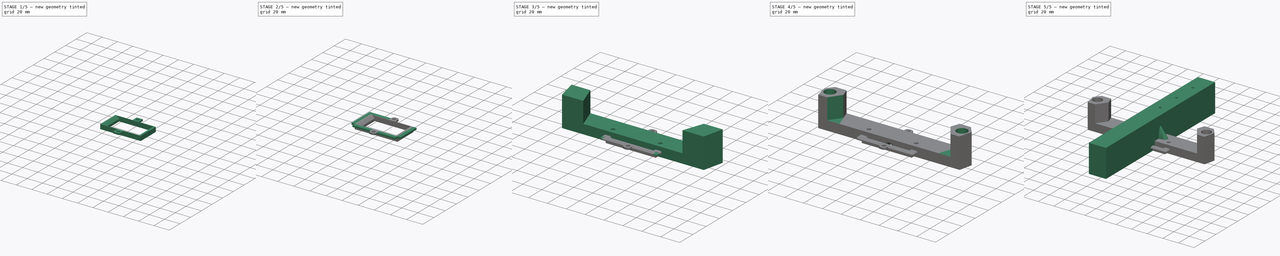
[diagram: build sequence overview — one tinted view per stage of 5, left to right]
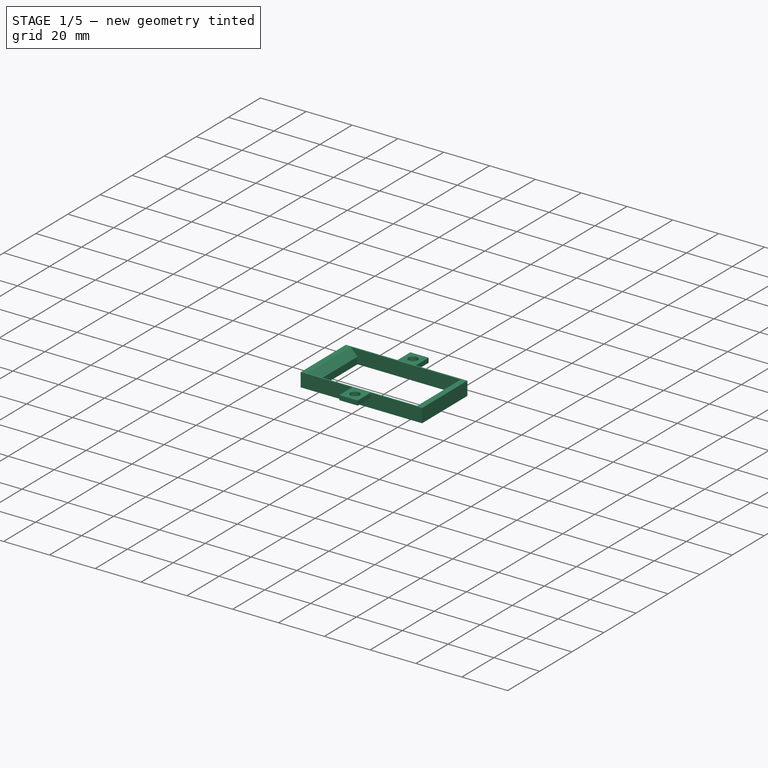
[diagram: stage 1 of 5 — iso view after this stage's code; geometry added in this stage tinted green]
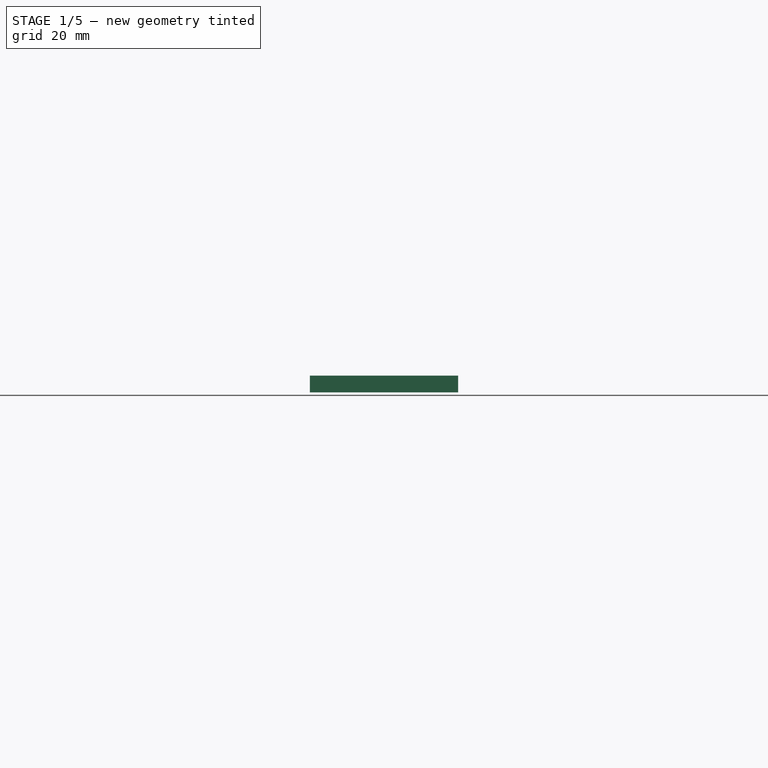
[diagram: stage 1 of 5 — front view after this stage's code; geometry added in this stage tinted green]
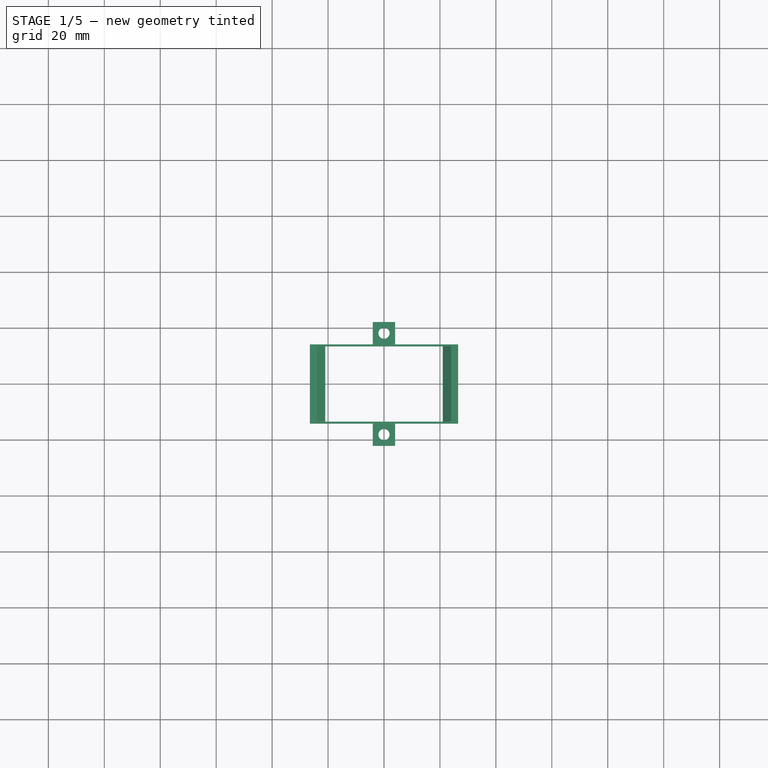
[diagram: stage 1 of 5 — top view after this stage's code; geometry added in this stage tinted green]
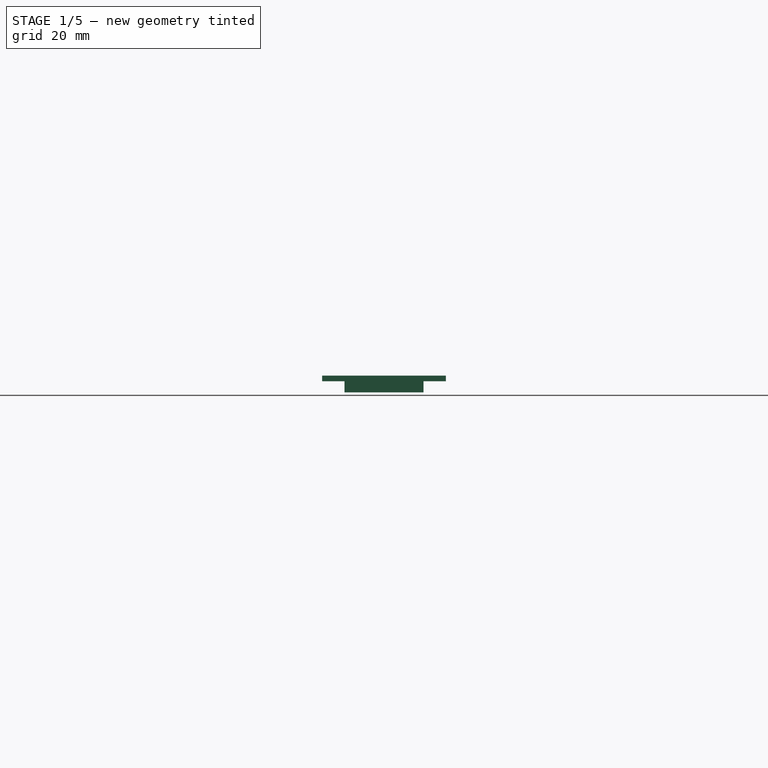
[diagram: stage 1 of 5 — right view after this stage's code; geometry added in this stage tinted green]
FCSTD DOCUMENT  (FreeCAD 0.21R33668 +1 (Git))
Label: bed_mount+rwg112holder
License: All rights reserved
LicenseURL: https://en.wikipedia.org/wiki/All_rights_reserved
objects: Sketcher::SketchObject×18, PartDesign::Pad×18, PartDesign::Pocket×11, PartDesign::Body×5, PartDesign::Chamfer×5, PartDesign::Fillet×3, PartDesign::AdditiveLoft×1, App::MeasureDistance×1
note: 99 computed .brp shape members not serialized (recipe doc carries the construction recipe); baked Part::Feature solids carry a one-line shape summary decoded from their .brp

FEATURE [PartDesign::Body] Body003
  Group = -> [Sketch009,Pad002,Sketch010,Pad003,Pocket005,Pocket006,Sketch011,Pocket007,Fillet,Sketch012,Pocket008,Chamfer,Chamfer001]
  Origin = -> Origin003
  Tip = -> Chamfer001
FEATURE [Sketcher::SketchObject] Sketch013
  FullyConstrained = true
  MapMode = 5
  Support = -> [XY_Plane004]
  sketch-geometry (4):
    g0: LineSegment StartX=-26.5 StartY=14.125 StartZ=0 EndX=26.5 EndY=14.125 EndZ=0
    g1: LineSegment StartX=26.5 StartY=14.125 StartZ=0 EndX=26.5 EndY=-14.125 EndZ=0
    g2: LineSegment StartX=26.5 StartY=-14.125 StartZ=0 EndX=-26.5 EndY=-14.125 EndZ=0
    g3: LineSegment StartX=-26.5 StartY=-14.125 StartZ=0 EndX=-26.5 EndY=14.125 EndZ=0
  constraints (11):
    c: Coincident(g0,g1)
    c: Coincident(g1,g2)
    c: Coincident(g2,g3)
    c: Coincident(g3,g0)
    c: Horizontal(g0)
    c: Horizontal(g2)
    c: Vertical(g1)
    c: Vertical(g3)
    c: DistanceY(g1,g1) = 28.25
    c: DistanceX(g0,g0) = 53
    c: Symmetric(g2,g0,g-1)
FEATURE [PartDesign::Pad] Pad004
  Direction = (0,0,1)
  Length = 4
  Length2 = 10
  Profile = -> Sketch013
  ReferenceAxis = -> Sketch013 [N_Axis]
  Type = 0
FEATURE [PartDesign::Pad] Pad005
  BaseFeature = -> Pad004
  Direction = (0,0,1)
  Length = 2
  Length2 = 10
  Profile = -> Pad004 [Face6]
  Type = 0
FEATURE [Sketcher::SketchObject] Sketch014
  ExternalGeometry = -> [Pad005]
  FullyConstrained = true
  MapMode = 5
  Placement = pos=(0,-14.125,0) rot=(1,0,0;1.5708rad)
  Support = -> [Pad005]
  sketch-geometry (4):
    g0: LineSegment StartX=-4 StartY=6 StartZ=0 EndX=4 EndY=6 EndZ=0
    g1: LineSegment StartX=4 StartY=6 StartZ=0 EndX=4 EndY=4 EndZ=0
    g2: LineSegment StartX=4 StartY=4 StartZ=0 EndX=-4 EndY=4 EndZ=0
    g3: LineSegment StartX=-4 StartY=4 StartZ=0 EndX=-4 EndY=6 EndZ=0
  constraints (12):
    c: Coincident(g0,g1)
    c: Coincident(g1,g2)
    c: Coincident(g2,g3)
    c: Coincident(g3,g0)
    c: Horizontal(g0)
    c: Horizontal(g2)
    c: Vertical(g1)
    c: Vertical(g3)
    c: PointOnObject(g0,g-3)
    c: PointOnObject(g1,g-4)
    c: DistanceX(g0,g0) = 8
    c: DistanceX(g-1,g1) = 4
FEATURE [PartDesign::Pad] Pad006
  BaseFeature = -> Pad005
  Direction = (0,-1,2e-16)
  Length = 8
  Length2 = 10
  Profile = -> Sketch014
  ReferenceAxis = -> Sketch014 [N_Axis]
  Type = 0
FEATURE [Sketcher::SketchObject] Sketch015
  ExternalGeometry = -> [Pad006]
  FullyConstrained = true
  MapMode = 5
  Placement = pos=(0,14.125,0) rot=(0,0.707107,0.707107;3.14159rad)
  Support = -> [Pad006]
  sketch-geometry (4):
    g0: LineSegment StartX=-4 StartY=6 StartZ=0 EndX=4 EndY=6 EndZ=0
    g1: LineSegment StartX=4 StartY=6 StartZ=0 EndX=4 EndY=4 EndZ=0
    g2: LineSegment StartX=4 StartY=4 StartZ=0 EndX=-4 EndY=4 EndZ=0
    g3: LineSegment StartX=-4 StartY=4 StartZ=0 EndX=-4 EndY=6 EndZ=0
  constraints (12):
    c: Coincident(g0,g1)
    c: Coincident(g1,g2)
    c: Coincident(g2,g3)
    c: Coincident(g3,g0)
    c: Horizontal(g0)
    c: Horizontal(g2)
    c: Vertical(g1)
    c: Vertical(g3)
    c: PointOnObject(g0,g-4)
    c: PointOnObject(g1,g-3)
    c: DistanceX(g0,g0) = 8
    c: DistanceX(g-1,g1) = 4
FEATURE [PartDesign::Pad] Pad007
  BaseFeature = -> Pad006
  Direction = (0,1,-2e-16)
  Length = 8
  Length2 = 10
  Profile = -> Sketch015
  ReferenceAxis = -> Sketch015 [N_Axis]
  Type = 0
FEATURE [Sketcher::SketchObject] Sketch016
  ExternalGeometry = -> [Pad007]
  FullyConstrained = true
  MapMode = 5
  Placement = pos=(0,1.3e-15,6) rot=(0,0,1;0rad)
  Support = -> [Pad007]
  sketch-geometry (2):
    g0: Circle CenterX=0 CenterY=18.125 CenterZ=0 NormalX=0 NormalY=0 NormalZ=1 AngleXU=0 Radius=2
    g1: Circle CenterX=0 CenterY=-18.125 CenterZ=0 NormalX=0 NormalY=0 NormalZ=1 AngleXU=0 Radius=2
  constraints (6):
    c: PointOnObject(g0,g-2)
    c: PointOnObject(g1,g-2)
    c: Diameter(g1) = 4
    c: Diameter(g0) = 4
    c: DistanceY(g-6,g1) = 4
    c: DistanceY(g-5,g0) = 4
FEATURE [PartDesign::Pocket] Pocket009
  BaseFeature = -> Pad007
  Direction = (0,-2e-16,-1)
  Length = 5
  Length2 = 5
  Profile = -> Sketch016
  ReferenceAxis = -> Sketch016 [N_Axis]
  Type = 1
FEATURE [Sketcher::SketchObject] Sketch017
  FullyConstrained = true
  MapMode = 5
  Placement = pos=(0,0,0) rot=(1,0,0;3.14159rad)
  Support = -> [Pocket009]
  sketch-geometry (4):
    g0: LineSegment StartX=-21 StartY=13.5 StartZ=0 EndX=21 EndY=13.5 EndZ=0
    g1: LineSegment StartX=21 StartY=13.5 StartZ=0 EndX=21 EndY=-13.5 EndZ=0
    g2: LineSegment StartX=21 StartY=-13.5 StartZ=0 EndX=-21 EndY=-13.5 EndZ=0
    g3: LineSegment StartX=-21 StartY=-13.5 StartZ=0 EndX=-21 EndY=13.5 EndZ=0
  constraints (11):
    c: Coincident(g0,g1)
    c: Coincident(g1,g2)
    c: Coincident(g2,g3)
    c: Coincident(g3,g0)
    c: Horizontal(g0)
    c: Horizontal(g2)
    c: Vertical(g1)
    c: Vertical(g3)
    c: DistanceX(g0,g0) = 42
    c: DistanceY(g1,g1) = 27
    c: Symmetric(g2,g0,g-1)
FEATURE [App::MeasureDistance] Distance  label="Distance: 31,95 mm"
  Distance = 31.9505
  P1 = (-76.5269,-4.18418,0.0800922)
  P2 = (-76.8433,-2.82375,32)
FEATURE [PartDesign::Pocket] Pocket010
  BaseFeature = -> Pocket009
  Direction = (0,0,1)
  Length = 5
  Length2 = 5
  Profile = -> Sketch017
  ReferenceAxis = -> Sketch017 [N_Axis]
  Type = 1
FEATURE [PartDesign::Chamfer] Chamfer002
  Angle = 45
  Base = -> Pocket010 [Edge42]
  BaseFeature = -> Pocket010
  ChamferType = 0
  FlipDirection = false
  Size = 3
  Size2 = 1
  SupportTransform = false
  UseAllEdges = false
FEATURE [PartDesign::Chamfer] Chamfer003
  Angle = 45
  Base = -> Chamfer002 [Edge18]
  BaseFeature = -> Chamfer002
  ChamferType = 0
  FlipDirection = false
  Size = 3
  Size2 = 1
  SupportTransform = false
  UseAllEdges = false
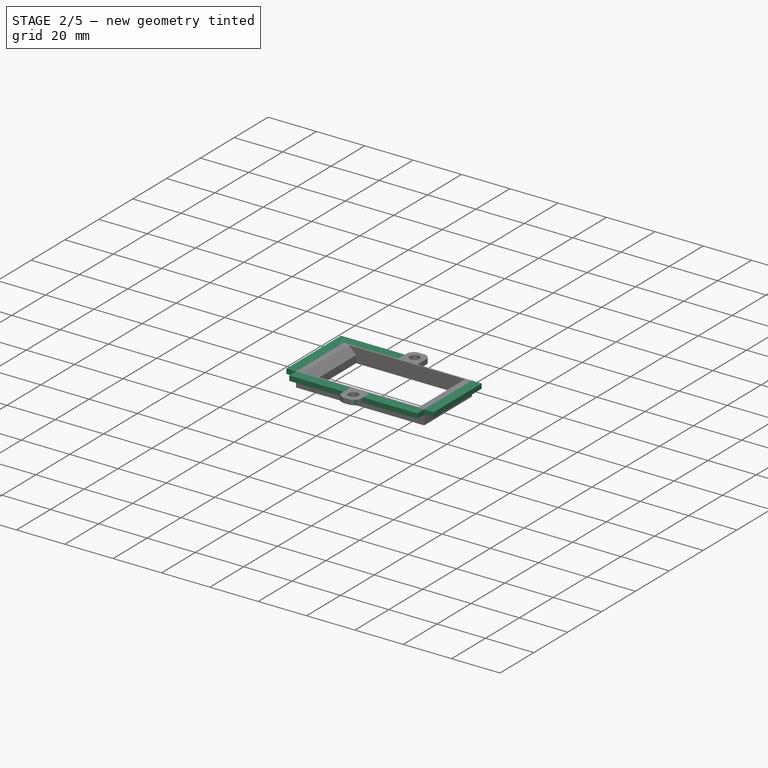
[diagram: stage 2 of 5 — iso view after this stage's code; geometry added in this stage tinted green]
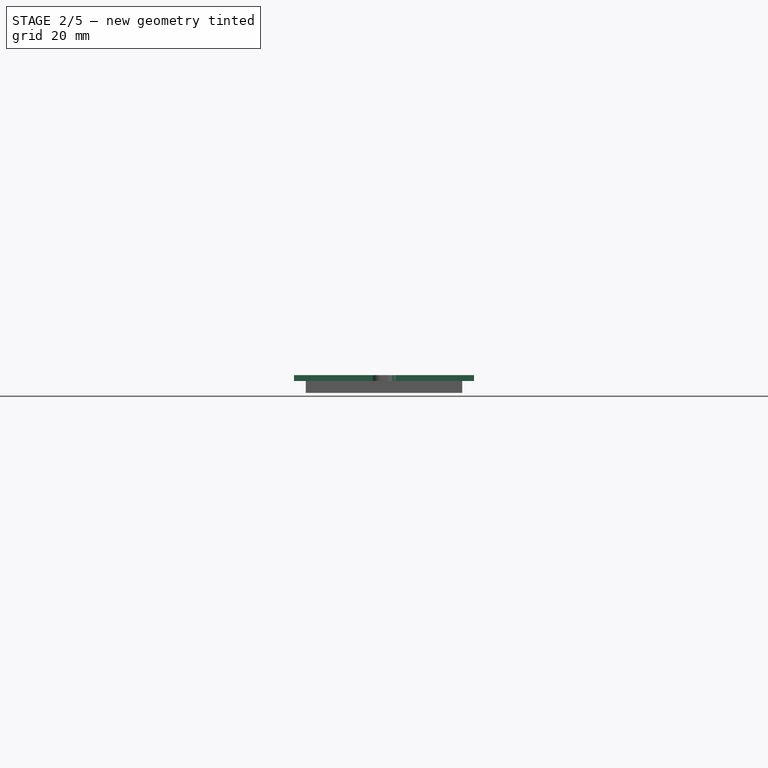
[diagram: stage 2 of 5 — front view after this stage's code; geometry added in this stage tinted green]
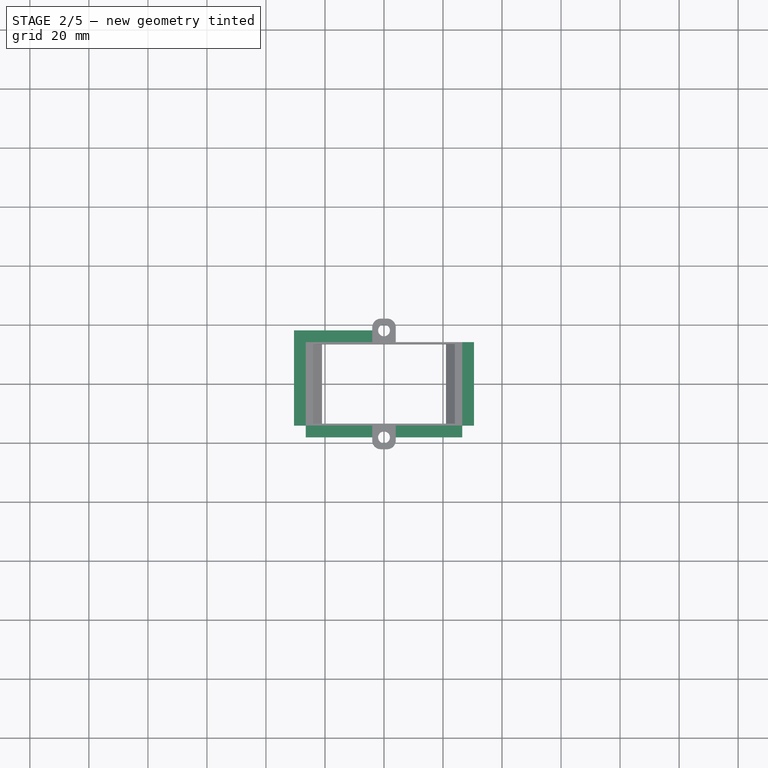
[diagram: stage 2 of 5 — top view after this stage's code; geometry added in this stage tinted green]
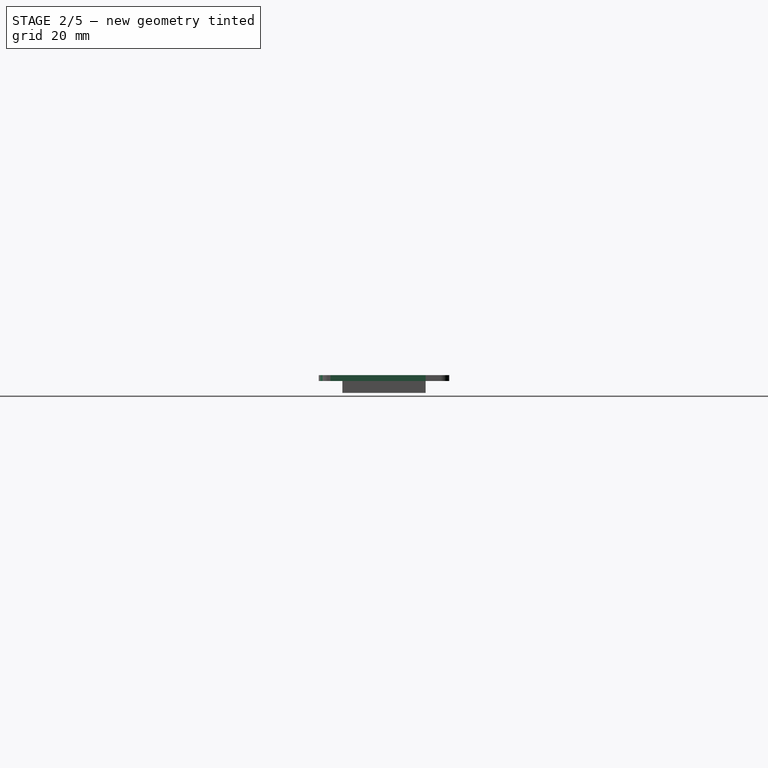
[diagram: stage 2 of 5 — right view after this stage's code; geometry added in this stage tinted green]
FEATURE [PartDesign::Fillet] Fillet001
  Base = -> Chamfer003 [Edge74,Edge75,Edge71,Edge72]
  BaseFeature = -> Chamfer003
  Radius = 3
  SupportTransform = false
  UseAllEdges = false
FEATURE [PartDesign::Pad] Pad008
  BaseFeature = -> Fillet001
  Direction = (0,-1,0)
  Length = 4
  Length2 = 10
  Profile = -> Fillet001 [Face20]
  Type = 0
FEATURE [PartDesign::Pad] Pad009
  BaseFeature = -> Pad008
  Direction = (1,0,0)
  Length = 4
  Length2 = 10
  Profile = -> Pad008 [Face19]
  Type = 0
FEATURE [PartDesign::Pad] Pad010
  BaseFeature = -> Pad009
  Direction = (-1,0,0)
  Length = 4
  Length2 = 10
  Profile = -> Pad009 [Face16]
  Type = 0
FEATURE [PartDesign::Pad] Pad011
  BaseFeature = -> Pad010
  Direction = (0,-1,0)
  Length = 4
  Length2 = 10
  Profile = -> Pad010 [Face17]
  Type = 0
FEATURE [PartDesign::Pad] Pad012
  BaseFeature = -> Pad011
  Direction = (0,1,0)
  Length = 4
  Length2 = 10
  Profile = -> Pad011 [Face15]
  Type = 0
FEATURE [PartDesign::Pad] Pad013
  BaseFeature = -> Pad012
  Direction = (0,1,0)
  Length = 4
  Length2 = 10
  Profile = -> Pad012 [Face30]
  Type = 0
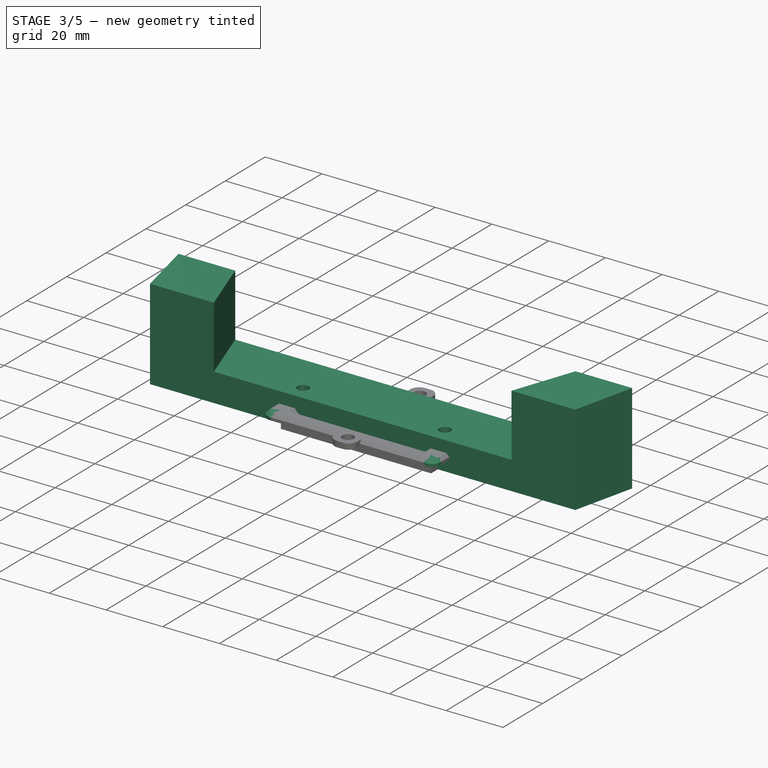
[diagram: stage 3 of 5 — iso view after this stage's code; geometry added in this stage tinted green]
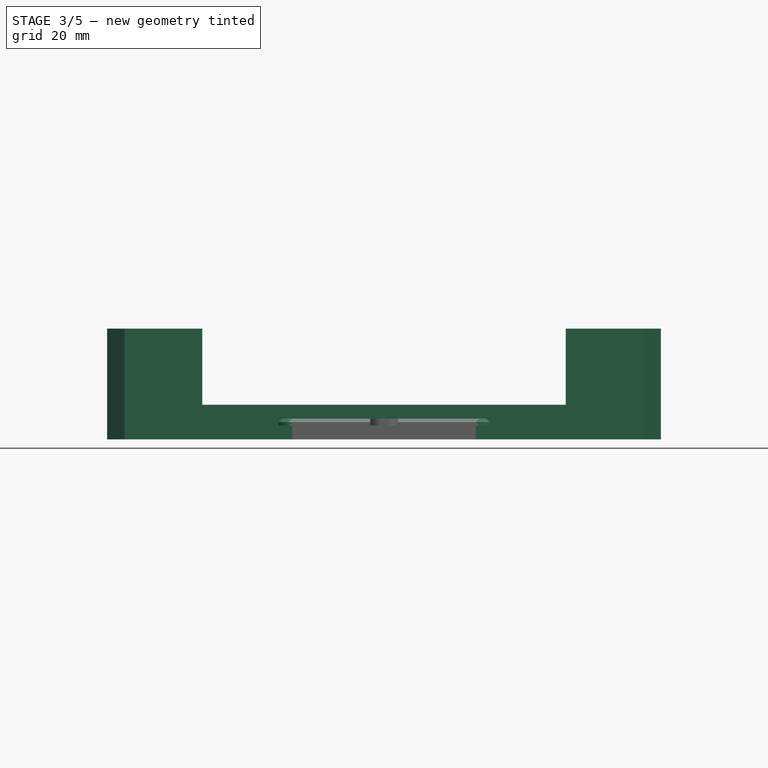
[diagram: stage 3 of 5 — front view after this stage's code; geometry added in this stage tinted green]
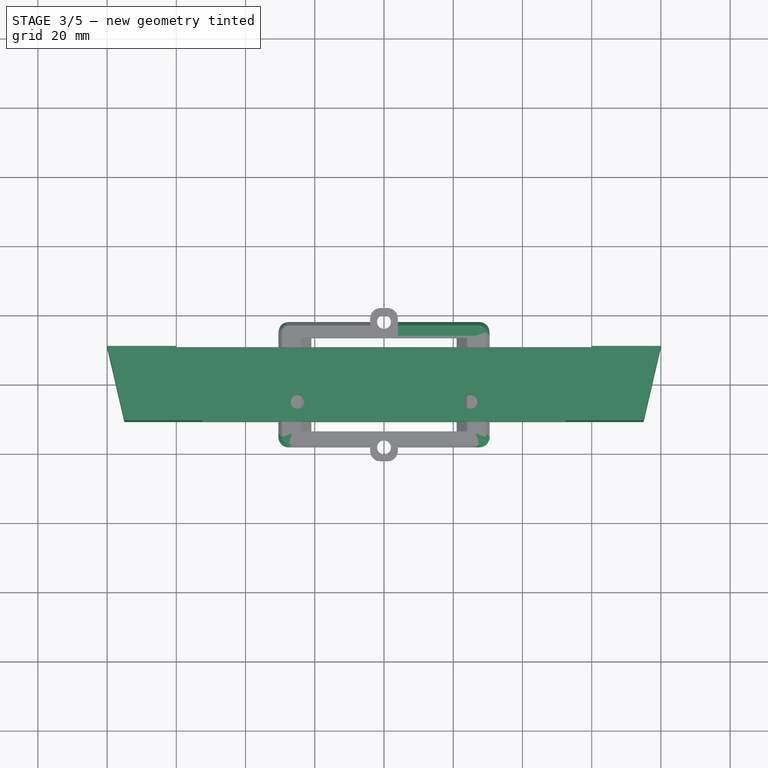
[diagram: stage 3 of 5 — top view after this stage's code; geometry added in this stage tinted green]
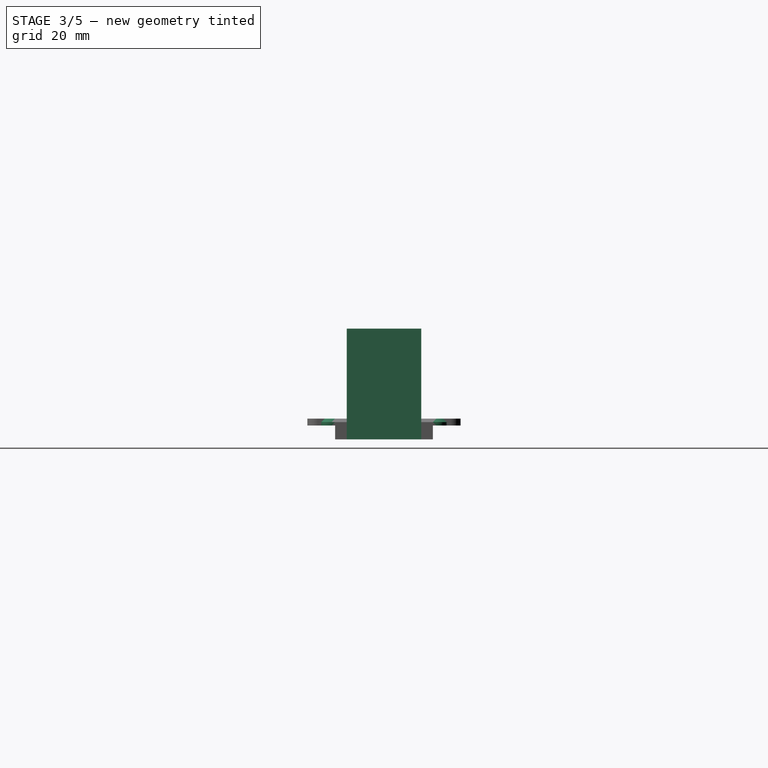
[diagram: stage 3 of 5 — right view after this stage's code; geometry added in this stage tinted green]
FEATURE [PartDesign::Body] Body002
  Group = -> [Sketch003,Sketch004,AdditiveLoft,Sketch005,Pocket001,Sketch006,Pocket002,Sketch007,Pocket003,Sketch008,Pocket004]
  Origin = -> Origin002
  Tip = -> Pocket004
FEATURE [Sketcher::SketchObject] Sketch009
  FullyConstrained = true
  MapMode = 5
  Support = -> [XY_Plane003]
  sketch-geometry (9):
    g0: LineSegment StartX=-80 StartY=10.75 StartZ=0 EndX=80 EndY=10.75 EndZ=0
    g1: LineSegment StartX=80 StartY=10.75 StartZ=0 EndX=75 EndY=-10.75 EndZ=0
    g2: LineSegment StartX=75 StartY=-10.75 StartZ=0 EndX=-75 EndY=-10.75 EndZ=0
    g3: LineSegment StartX=-75 StartY=-10.75 StartZ=0 EndX=-80 EndY=10.75 EndZ=0
    g4: Circle CenterX=-70 CenterY=0 CenterZ=0 NormalX=0 NormalY=0 NormalZ=1 AngleXU=0 Radius=2
    g5: Circle CenterX=70 CenterY=0 CenterZ=0 NormalX=0 NormalY=0 NormalZ=1 AngleXU=0 Radius=2
    g6: Circle CenterX=-25 CenterY=-5 CenterZ=0 NormalX=0 NormalY=0 NormalZ=1 AngleXU=0 Radius=2
    g7: Circle CenterX=25 CenterY=-5 CenterZ=0 NormalX=0 NormalY=0 NormalZ=1 AngleXU=0 Radius=2
    g8: LineSegment StartX=-25 StartY=-5 StartZ=0 EndX=25 EndY=-5 EndZ=0
  constraints (26):
    c: Horizontal(g0)
    c: DistanceX(g0,g0) = 160
    c: DistanceX(g-1,g0) = 80
    c: Coincident(g0,g1)
    c: Coincident(g1,g2)
    c: Horizontal(g2)
    c: Coincident(g2,g3)
    c: Coincident(g3,g0)
    c: PointOnObject(g4,g-1)
    c: PointOnObject(g5,g-1)
    c: DistanceX(g4,g5) = 140
    c: Diameter(g5) = 4
    c: Diameter(g4) = 4
    c: DistanceX(g2,g2) = 150
    c: DistanceX(g-1,g5) = 70
    c: DistanceX(g-1,g1) = 75
    c: DistanceX(g7,g5) = 45
    c: DistanceX(g4,g6) = 45
    c: Coincident(g8,g6)
    c: Coincident(g8,g7)
    c: Horizontal(g8)
    c: Diameter(g6) = 4
    c: Diameter(g7) = 4
    c: DistanceY(g6,g4) = 5
    c: DistanceY(g1,g1) = 21.5
    c: DistanceY(g-1,g0) = 10.75
FEATURE [PartDesign::Pad] Pad002
  Direction = (0,0,1)
  Length = 10
  Length2 = 10
  Profile = -> Sketch009
  ReferenceAxis = -> Sketch009 [N_Axis]
  Type = 0
FEATURE [Sketcher::SketchObject] Sketch010
  ExternalGeometry = -> [Pad002]
  FullyConstrained = true
  MapMode = 5
  Placement = pos=(0,0,10) rot=(0,0,1;0rad)
  Support = -> [Pad002]
  sketch-geometry (8):
    g0: LineSegment StartX=75 StartY=-10.75 StartZ=0 EndX=80 EndY=10.75 EndZ=0
    g1: LineSegment StartX=80 StartY=10.75 StartZ=0 EndX=60 EndY=10.75 EndZ=0
    g2: LineSegment StartX=60 StartY=10.75 StartZ=0 EndX=52.5 EndY=-10.75 EndZ=0
    g3: LineSegment StartX=52.5 StartY=-10.75 StartZ=0 EndX=75 EndY=-10.75 EndZ=0
    g4: LineSegment StartX=-80 StartY=10.75 StartZ=0 EndX=-60 EndY=10.75 EndZ=0
    g5: LineSegment StartX=-60 StartY=10.75 StartZ=0 EndX=-52.5 EndY=-10.75 EndZ=0
    g6: LineSegment StartX=-52.5 StartY=-10.75 StartZ=0 EndX=-75 EndY=-10.75 EndZ=0
    g7: LineSegment StartX=-80 StartY=10.75 StartZ=0 EndX=-75 EndY=-10.75 EndZ=0
  constraints (20):
    c: Coincident(g-5,g0)
    c: Coincident(g0,g-3)
    c: Coincident(g0,g1)
    c: Horizontal(g1)
    c: Coincident(g1,g2)
    c: Coincident(g2,g3)
    c: Coincident(g3,g0)
    c: Horizontal(g3)
    c: Coincident(g-4,g4)
    c: Horizontal(g4)
    c: Coincident(g4,g5)
    c: Coincident(g5,g6)
    c: Coincident(g6,g-5)
    c: Horizontal(g6)
    c: DistanceX(g1,g1) = 20
    c: DistanceX(g3,g3) = 22.5
    c: DistanceX(g6,g6) = 22.5
    c: DistanceX(g4,g4) = 20
    c: Coincident(g7,g4)
    c: Coincident(g7,g6)
FEATURE [PartDesign::Pad] Pad003
  BaseFeature = -> Pad002
  Direction = (0,0,1)
  Length = 22
  Length2 = 10
  Profile = -> Sketch010
  ReferenceAxis = -> Sketch010 [N_Axis]
  Type = 0
FEATURE [PartDesign::Pad] Pad014
  BaseFeature = -> Pad013
  Direction = (0,-1,0)
  Length = 4
  Length2 = 10
  Profile = -> Pad013 [Face29]
  Type = 0
FEATURE [PartDesign::Pad] Pad015
  BaseFeature = -> Pad014
  Direction = (0,-1,0)
  Length = 4
  Length2 = 10
  Profile = -> Pad014 [Face38]
  Type = 0
FEATURE [PartDesign::Pad] Pad016
  BaseFeature = -> Pad015
  Direction = (0,1,0)
  Length = 4
  Length2 = 10
  Profile = -> Pad015 [Face11]
  Type = 0
FEATURE [PartDesign::Pad] Pad017
  BaseFeature = -> Pad016
  Direction = (0,1,0)
  Length = 4
  Length2 = 10
  Profile = -> Pad016 [Face26]
  Type = 0
FEATURE [PartDesign::Fillet] Fillet002
  Base = -> Pad017 [Edge85,Edge145,Edge138,Edge126]
  BaseFeature = -> Pad017
  Radius = 3
  SupportTransform = false
  UseAllEdges = false
FEATURE [PartDesign::Chamfer] Chamfer004
  Angle = 45
  Base = -> Fillet002 [Edge75,Edge18]
  BaseFeature = -> Fillet002
  ChamferType = 0
  FlipDirection = false
  Size = 1
  Size2 = 1
  SupportTransform = false
  UseAllEdges = false
FEATURE [PartDesign::Body] Body004
  Group = -> [Sketch013,Pad004,Pad005,Sketch014,Pad006,Sketch015,Pad007,Sketch016,Pocket009,Sketch017,Pocket010,Chamfer002,Chamfer003,Fillet001,Pad008,Pad009,Pad010,Pad011,Pad012,Pad013,Pad014,Pad015,Pad016,Pad017,Fillet002,Chamfer004]
  Origin = -> Origin004
  Tip = -> Chamfer004
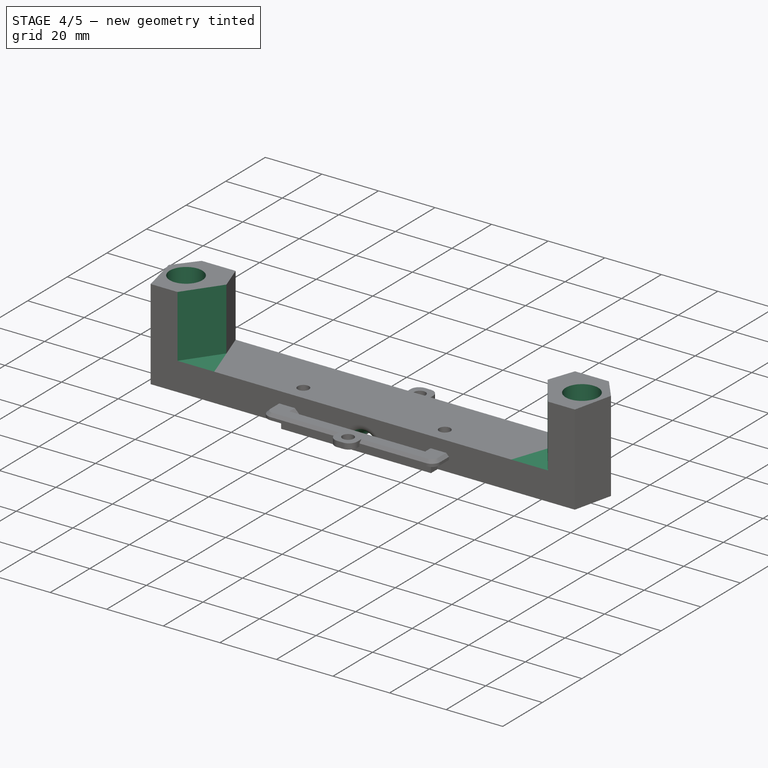
[diagram: stage 4 of 5 — iso view after this stage's code; geometry added in this stage tinted green]
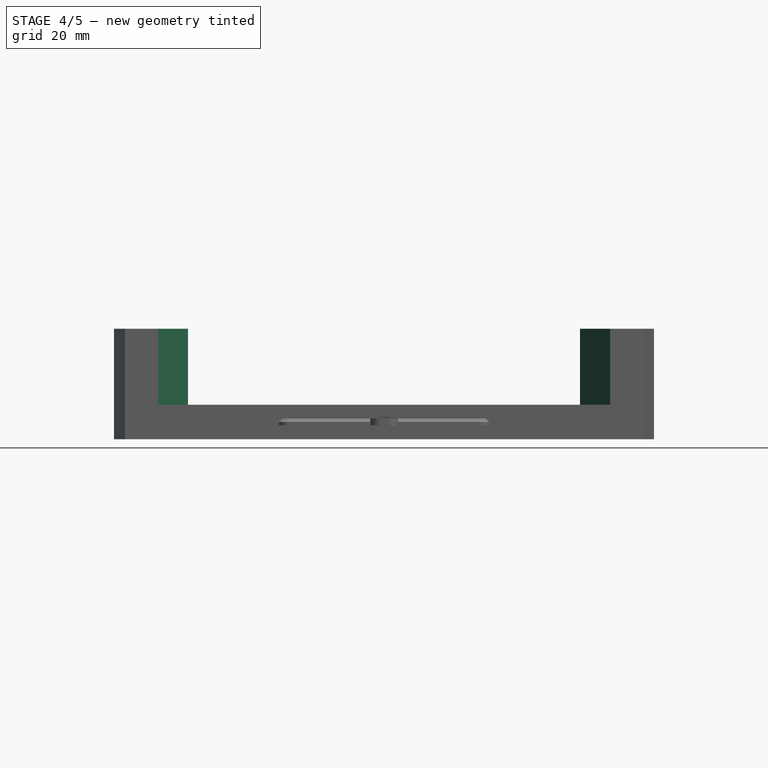
[diagram: stage 4 of 5 — front view after this stage's code; geometry added in this stage tinted green]
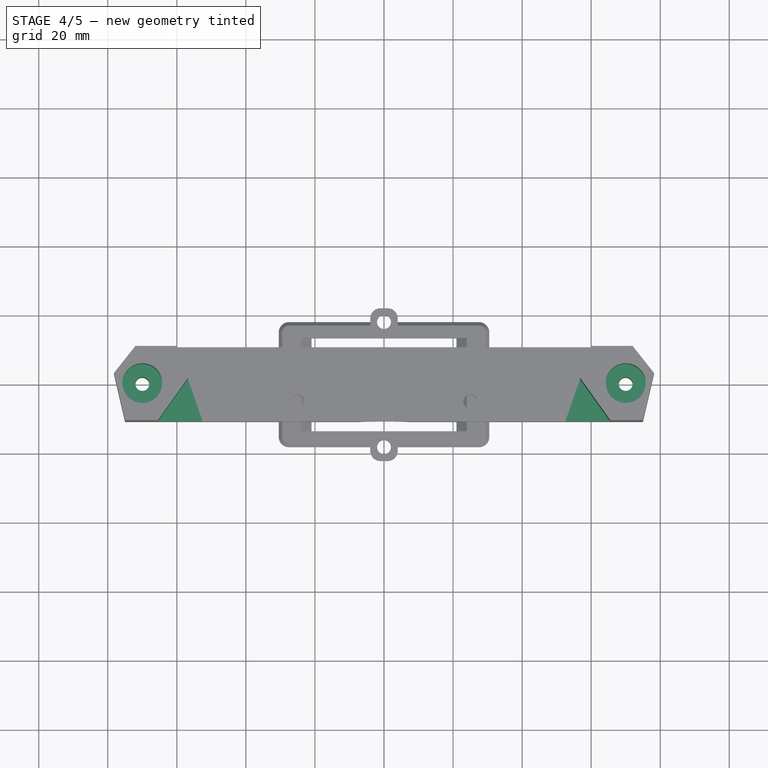
[diagram: stage 4 of 5 — top view after this stage's code; geometry added in this stage tinted green]
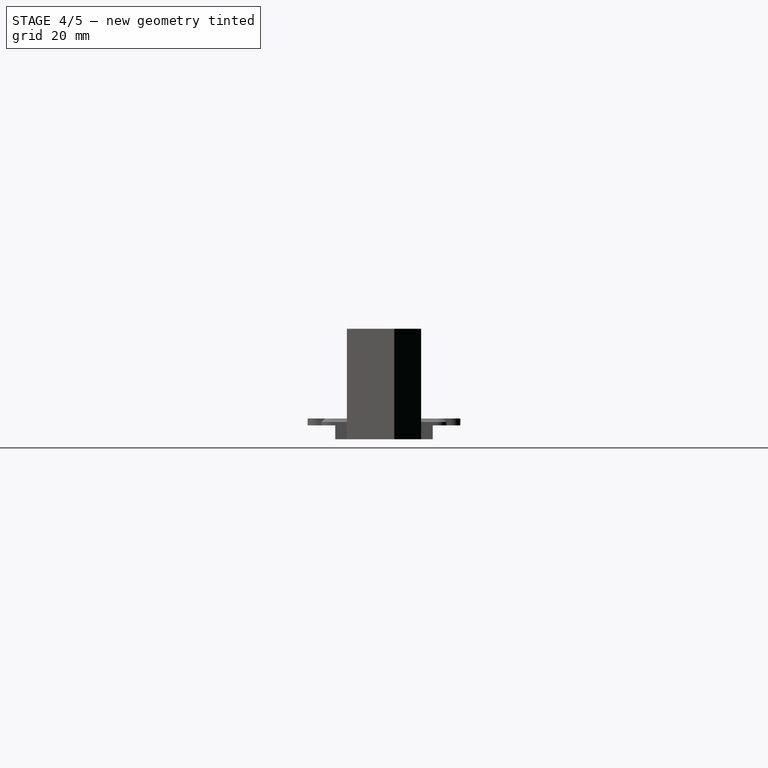
[diagram: stage 4 of 5 — right view after this stage's code; geometry added in this stage tinted green]
FEATURE [PartDesign::Pocket] Pocket005
  BaseFeature = -> Pad003
  Direction = (0,0,1)
  Length = 5
  Length2 = 5
  Profile = -> Pad003 [Face21]
  Type = 1
FEATURE [PartDesign::Pocket] Pocket006
  BaseFeature = -> Pocket005
  Direction = (0,0,1)
  Length = 5
  Length2 = 5
  Profile = -> Pocket005 [Face22]
  Type = 1
FEATURE [Sketcher::SketchObject] Sketch011
  FullyConstrained = true
  MapMode = 5
  Placement = pos=(0,-10.75,0) rot=(1,0,0;1.5708rad)
  Support = -> [Pocket006]
  sketch-geometry (2):
    g0: ArcOfCircle CenterX=0 CenterY=0 CenterZ=0 NormalX=0 NormalY=0 NormalZ=1 AngleXU=0 Radius=4 StartAngle=0 EndAngle=3.14159
    g1: LineSegment StartX=-4 StartY=-3.1e-15 StartZ=0 EndX=4 EndY=-3.1e-15 EndZ=0
  constraints (6):
    c: Coincident(g0,g-1)
    c: PointOnObject(g0,g-1)
    c: Diameter(g0) = 8
    c: Coincident(g1,g0)
    c: Coincident(g1,g0)
    c: Horizontal(g1)
FEATURE [PartDesign::Pocket] Pocket007
  BaseFeature = -> Pocket006
  Direction = (0,1,-2e-16)
  Length = 5
  Length2 = 5
  Profile = -> Sketch011
  ReferenceAxis = -> Sketch011 [N_Axis]
  Type = 1
FEATURE [PartDesign::Fillet] Fillet
  Base = -> Pocket007 [Edge14]
  BaseFeature = -> Pocket007
  Radius = 3
  SupportTransform = false
  UseAllEdges = false
FEATURE [Sketcher::SketchObject] Sketch012
  ExternalGeometry = -> [Fillet]
  FullyConstrained = true
  MapMode = 5
  Placement = pos=(0,0,32) rot=(0,0,1;0rad)
  Support = -> [Fillet]
  sketch-geometry (2):
    g0: Circle CenterX=-70 CenterY=0 CenterZ=0 NormalX=0 NormalY=0 NormalZ=1 AngleXU=0 Radius=5.75
    g1: Circle CenterX=70 CenterY=0 CenterZ=0 NormalX=0 NormalY=0 NormalZ=1 AngleXU=0 Radius=5.75
  constraints (4):
    c: Coincident(g0,g-4)
    c: Diameter(g0) = 11.5
    c: Coincident(g1,g-3)
    c: Diameter(g1) = 11.5
FEATURE [PartDesign::Pocket] Pocket008
  BaseFeature = -> Fillet
  Direction = (0,0,-1)
  Length = 15
  Length2 = 5
  Profile = -> Sketch012
  ReferenceAxis = -> Sketch012 [N_Axis]
  Type = 0
FEATURE [PartDesign::Chamfer] Chamfer
  Angle = 45
  Base = -> Pocket008 [Edge46,Edge43]
  BaseFeature = -> Pocket008
  ChamferType = 0
  FlipDirection = false
  Size = 13
  Size2 = 1
  SupportTransform = false
  UseAllEdges = false
FEATURE [PartDesign::Chamfer] Chamfer001
  Angle = 45
  Base = -> Chamfer [Edge43,Edge57]
  BaseFeature = -> Chamfer
  ChamferType = 0
  FlipDirection = false
  Size = 8
  Size2 = 1
  SupportTransform = false
  UseAllEdges = false
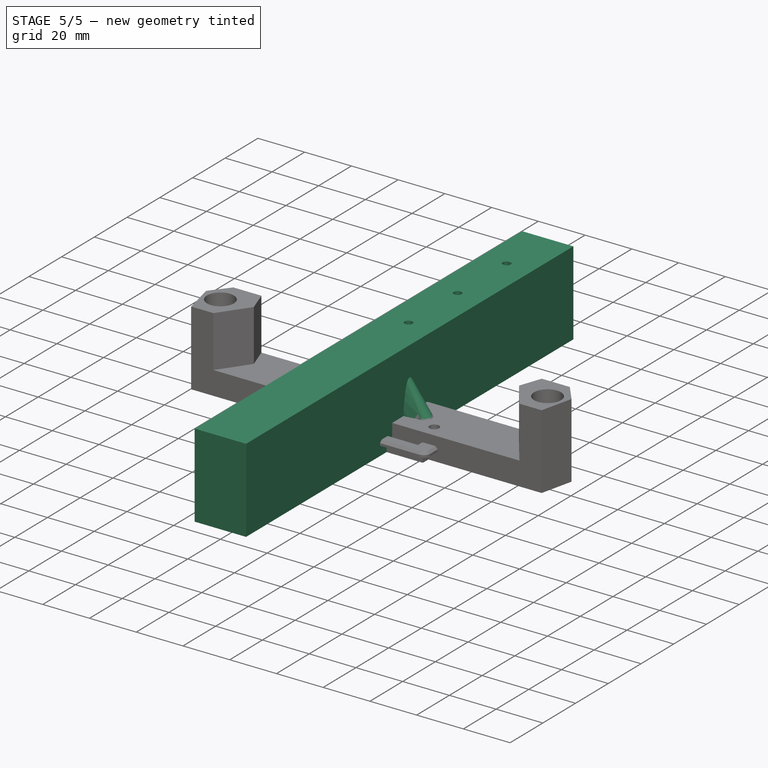
[diagram: stage 5 of 5 — iso view after this stage's code; geometry added in this stage tinted green]
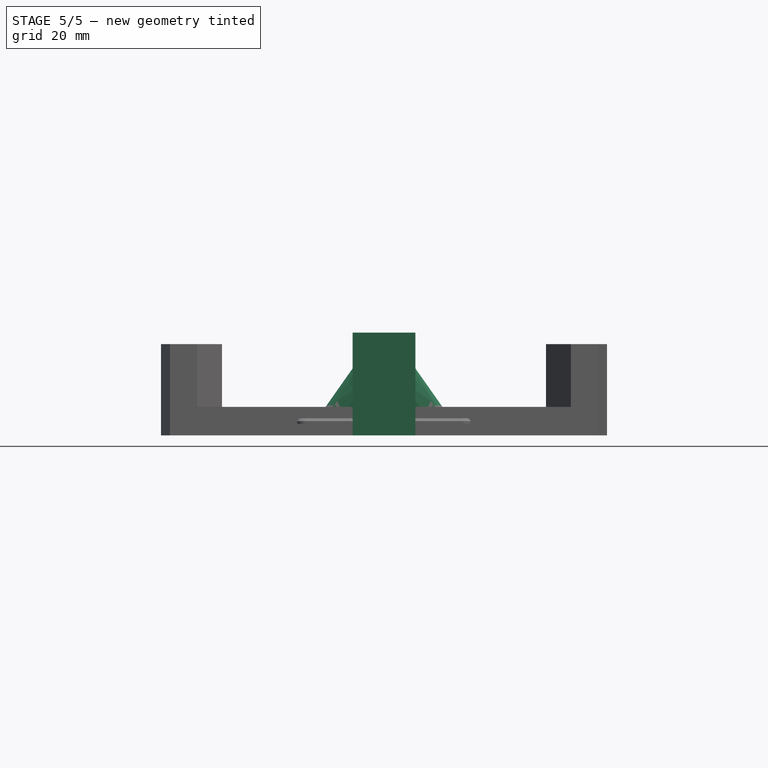
[diagram: stage 5 of 5 — front view after this stage's code; geometry added in this stage tinted green]
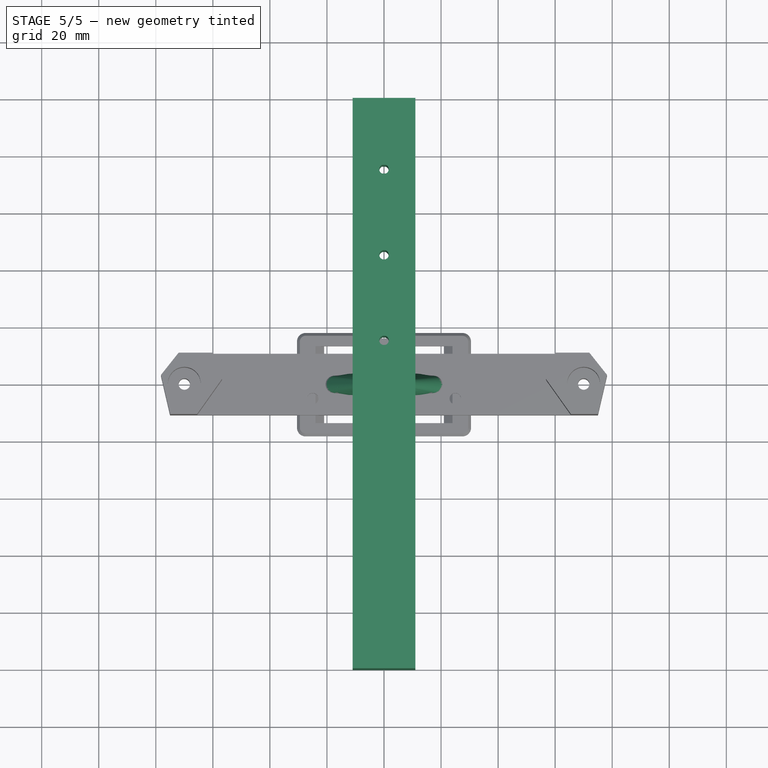
[diagram: stage 5 of 5 — top view after this stage's code; geometry added in this stage tinted green]
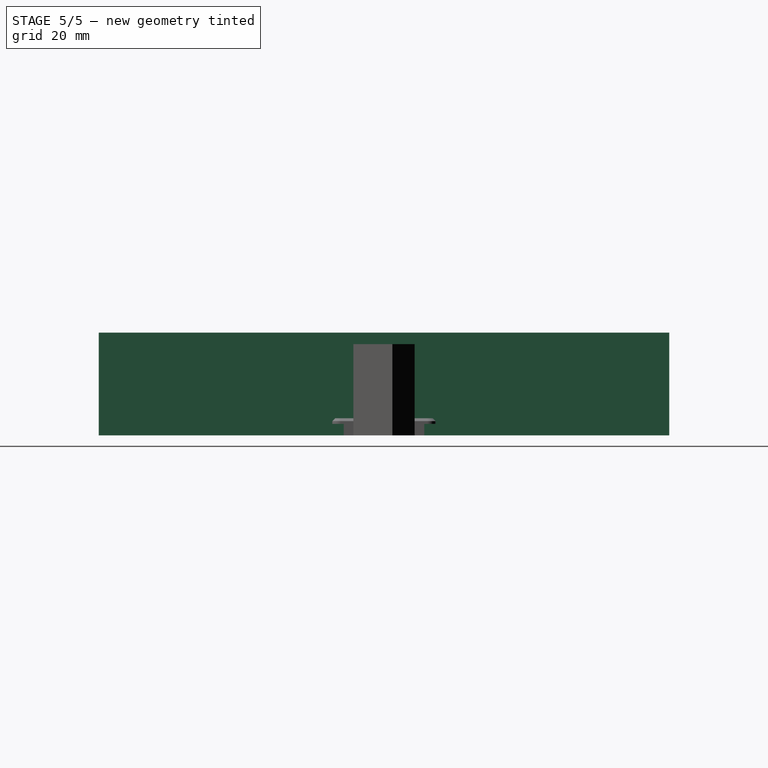
[diagram: stage 5 of 5 — right view after this stage's code; geometry added in this stage tinted green]
FEATURE [Sketcher::SketchObject] Sketch
  FullyConstrained = true
  MapMode = 5
  Support = -> [XY_Plane]
  sketch-geometry (4):
    g0: LineSegment StartX=-9 StartY=100 StartZ=0 EndX=11 EndY=100 EndZ=0
    g1: LineSegment StartX=11 StartY=100 StartZ=0 EndX=11 EndY=-100 EndZ=0
    g2: LineSegment StartX=11 StartY=-100 StartZ=0 EndX=-9 EndY=-100 EndZ=0
    g3: LineSegment StartX=-9 StartY=-100 StartZ=0 EndX=-9 EndY=100 EndZ=0
  constraints (12):
    c: Coincident(g0,g1)
    c: Coincident(g1,g2)
    c: Coincident(g2,g3)
    c: Coincident(g3,g0)
    c: Horizontal(g0)
    c: Horizontal(g2)
    c: Vertical(g1)
    c: Vertical(g3)
    c: DistanceX(g0,g0) = 20
    c: DistanceX(g-1,g0) = 11
    c: DistanceY(g1,g1) = 200
    c: DistanceY(g1,g-1) = 100
FEATURE [PartDesign::Pad] Pad
  Direction = (0,0,1)
  Length = 36
  Length2 = 10
  Profile = -> Sketch
  ReferenceAxis = -> Sketch [N_Axis]
  Type = 0
FEATURE [Sketcher::SketchObject] Sketch001
  ExternalGeometry = -> [Pad]
  FullyConstrained = true
  MapMode = 5
  Placement = pos=(0,0,36) rot=(0,0,1;0rad)
  Support = -> [Pad]
  sketch-geometry (6):
    g0: Circle CenterX=0 CenterY=-75 CenterZ=0 NormalX=0 NormalY=0 NormalZ=1 AngleXU=0 Radius=1.65
    g1: Circle CenterX=0 CenterY=-45 CenterZ=0 NormalX=0 NormalY=0 NormalZ=1 AngleXU=0 Radius=1.65
    g2: Circle CenterX=0 CenterY=-15 CenterZ=0 NormalX=0 NormalY=0 NormalZ=1 AngleXU=0 Radius=1.65
    g3: Circle CenterX=0 CenterY=15 CenterZ=0 NormalX=0 NormalY=0 NormalZ=1 AngleXU=0 Radius=1.65
    g4: Circle CenterX=0 CenterY=45 CenterZ=0 NormalX=0 NormalY=0 NormalZ=1 AngleXU=0 Radius=1.65
    g5: Circle CenterX=0 CenterY=75 CenterZ=0 NormalX=0 NormalY=0 NormalZ=1 AngleXU=0 Radius=1.65
  constraints (18):
    c: PointOnObject(g0,g-2)
    c: PointOnObject(g1,g-2)
    c: PointOnObject(g2,g-2)
    c: PointOnObject(g3,g-2)
    c: PointOnObject(g4,g-2)
    c: PointOnObject(g5,g-2)
    c: Diameter(g5) = 3.3
    c: Diameter(g4) = 3.3
    c: Equal(g4,g3)
    c: Equal(g3,g2)
    c: Equal(g2,g1)
    c: Equal(g1,g0)
    c: DistanceY(g2,g3) = 30
    c: DistanceY(g2,g-1) = 15
    c: DistanceY(g1,g2) = 30
    c: DistanceY(g0,g1) = 30
    c: DistanceY(g3,g4) = 30
    c: DistanceY(g4,g5) = 30
FEATURE [PartDesign::Pocket] Pocket
  BaseFeature = -> Pad
  Direction = (0,0,-1)
  Length = 5
  Length2 = 5
  Profile = -> Sketch001
  ReferenceAxis = -> Sketch001 [N_Axis]
  Type = 1
FEATURE [PartDesign::Body] Body
  Group = -> [Sketch,Pad,Sketch001,Pocket]
  Origin = -> Origin
  Tip = -> Pocket
FEATURE [Sketcher::SketchObject] Sketch002
  FullyConstrained = true
  MapMode = 5
  Support = -> [XY_Plane001]
  sketch-geometry (28):
    g0: LineSegment StartX=-11 StartY=100 StartZ=0 EndX=9 EndY=100 EndZ=0
    g1: LineSegment StartX=9 StartY=100 StartZ=0 EndX=9 EndY=-100 EndZ=0
    g2: LineSegment StartX=9 StartY=-100 StartZ=0 EndX=-11 EndY=-100 EndZ=0
    g3: LineSegment StartX=-11 StartY=-100 StartZ=0 EndX=-11 EndY=100 EndZ=0
    g4: ArcOfCircle CenterX=4.5 CenterY=15 CenterZ=0 NormalX=0 NormalY=0 NormalZ=1 AngleXU=0 Radius=1.6 StartAngle=4.71239 EndAngle=7.85398
    g5: ArcOfCircle CenterX=-4.5 CenterY=15 CenterZ=0 NormalX=0 NormalY=0 NormalZ=1 AngleXU=0 Radius=1.6 StartAngle=1.5708 EndAngle=4.71239
    g6: LineSegment StartX=4.5 StartY=16.6 StartZ=0 EndX=-4.5 EndY=16.6 EndZ=0
    g7: LineSegment StartX=-4.5 StartY=13.4 StartZ=0 EndX=4.5 EndY=13.4 EndZ=0
    g8: ArcOfCircle CenterX=4.5 CenterY=-30 CenterZ=0 NormalX=0 NormalY=0 NormalZ=1 AngleXU=0 Radius=1.5 StartAngle=4.71239 EndAngle=7.85398
    g9: ArcOfCircle CenterX=-4.5 CenterY=-30 CenterZ=0 NormalX=0 NormalY=0 NormalZ=1 AngleXU=0 Radius=1.5 StartAngle=1.5708 EndAngle=4.71239
    g10: LineSegment StartX=4.5 StartY=-28.5 StartZ=0 EndX=-4.5 EndY=-28.5 EndZ=0
    g11: LineSegment StartX=-4.5 StartY=-31.5 StartZ=0 EndX=4.5 EndY=-31.5 EndZ=0
    g12: ArcOfCircle CenterX=4.5 CenterY=-60 CenterZ=0 NormalX=0 NormalY=0 NormalZ=1 AngleXU=0 Radius=1.5 StartAngle=4.71239 EndAngle=7.85398
    g13: ArcOfCircle CenterX=-4.5 CenterY=-60 CenterZ=0 NormalX=0 NormalY=0 NormalZ=1 AngleXU=0 Radius=1.5 StartAngle=1.5708 EndAngle=4.71239
    g14: LineSegment StartX=4.5 StartY=-58.5 StartZ=0 EndX=-4.5 EndY=-58.5 EndZ=0
    g15: LineSegment StartX=-4.5 StartY=-61.5 StartZ=0 EndX=4.5 EndY=-61.5 EndZ=0
    g16: ArcOfCircle CenterX=4.5 CenterY=-90 CenterZ=0 NormalX=0 NormalY=0 NormalZ=1 AngleXU=0 Radius=1.5 StartAngle=4.71239 EndAngle=7.85398
    g17: ArcOfCircle CenterX=-4.5 CenterY=-90 CenterZ=0 NormalX=0 NormalY=0 NormalZ=1 AngleXU=0 Radius=1.5 StartAngle=1.5708 EndAngle=4.71239
    g18: LineSegment StartX=4.5 StartY=-88.5 StartZ=0 EndX=-4.5 EndY=-88.5 EndZ=0
    g19: LineSegment StartX=-4.5 StartY=-91.5 StartZ=0 EndX=4.5 EndY=-91.5 EndZ=0
    g20: ArcOfCircle CenterX=4.5 CenterY=45 CenterZ=0 NormalX=0 NormalY=0 NormalZ=1 AngleXU=0 Radius=1.6 StartAngle=4.71239 EndAngle=7.85398
    g21: ArcOfCircle CenterX=-4.5 CenterY=45 CenterZ=0 NormalX=0 NormalY=0 NormalZ=1 AngleXU=0 Radius=1.6 StartAngle=1.5708 EndAngle=4.71239
    g22: LineSegment StartX=4.5 StartY=46.6 StartZ=0 EndX=-4.5 EndY=46.6 EndZ=0
    g23: LineSegment StartX=-4.5 StartY=43.4 StartZ=0 EndX=4.5 EndY=43.4 EndZ=0
    g24: ArcOfCircle CenterX=4.5 CenterY=75 CenterZ=0 NormalX=0 NormalY=0 NormalZ=1 AngleXU=0 Radius=1.5 StartAngle=4.71239 EndAngle=7.85398
    g25: ArcOfCircle CenterX=-4.5 CenterY=75 CenterZ=0 NormalX=0 NormalY=0 NormalZ=1 AngleXU=0 Radius=1.5 StartAngle=1.5708 EndAngle=4.71239
    g26: LineSegment StartX=4.5 StartY=76.5 StartZ=0 EndX=-4.5 EndY=76.5 EndZ=0
    g27: LineSegment StartX=-4.5 StartY=73.5 StartZ=0 EndX=4.5 EndY=73.5 EndZ=0
  constraints (72):
    c: Coincident(g0,g1)
    c: Coincident(g1,g2)
    c: Coincident(g2,g3)
    c: Coincident(g3,g0)
    c: Horizontal(g0)
    c: Horizontal(g2)
    c: Vertical(g1)
    c: Vertical(g3)
    c: DistanceY(g1,g1) = 200
    c: DistanceX(g0,g0) = 20
    c: DistanceX(g0,g-1) = 11
    c: DistanceY(g1,g-1) = 100
    c: Tangent(g4,g6) = -1.5708
    c: Tangent(g6,g5) = -1.5708
    c: Tangent(g5,g7) = -1.5708
    c: Tangent(g7,g4) = -1.5708
    c: Equal(g4,g5)
    c: Horizontal(g6)
    c: DistanceY(g4,g4) = 3.2
    c: DistanceX(g5,g4) = 9
    c: DistanceX(g-1,g4) = 4.5
    c: DistanceY(g-1,g4) = 15
    c: Tangent(g8,g10) = -1.5708
    c: Tangent(g10,g9) = -1.5708
    c: Tangent(g9,g11) = -1.5708
    c: Tangent(g11,g8) = -1.5708
    c: Equal(g8,g9)
    c: Horizontal(g10)
    c: Tangent(g12,g14) = -1.5708
    c: Tangent(g14,g13) = -1.5708
    c: Tangent(g13,g15) = -1.5708
    c: Tangent(g15,g12) = -1.5708
    c: Equal(g12,g13)
    c: Horizontal(g14)
    c: Tangent(g16,g18) = -1.5708
    c: Tangent(g18,g17) = -1.5708
    c: Tangent(g17,g19) = -1.5708
    c: Tangent(g19,g16) = -1.5708
    c: Equal(g16,g17)
    c: Tangent(g20,g22) = -1.5708
    c: Tangent(g22,g21) = -1.5708
    c: Tangent(g21,g23) = -1.5708
    c: Tangent(g23,g20) = -1.5708
    c: Equal(g20,g21)
    c: Horizontal(g22)
    c: Tangent(g24,g26) = -1.5708
    c: Tangent(g26,g25) = -1.5708
    c: Tangent(g25,g27) = -1.5708
    c: Tangent(g27,g24) = -1.5708
    c: Equal(g24,g25)
    c: Horizontal(g26)
    c: DistanceY(g4,g20) = 30
    c: Equal(g6,g23)
    c: Equal(g4,g20)
    c: DistanceY(g8,g-1) = 30
    c: DistanceY(g12,g8) = 30
    c: DistanceY(g16,g12) = 30
    c: Horizontal(g18)
    c: DistanceY(g20,g24) = 30
    c: DistanceX(g-1,g24) = 4.5
    c: DistanceX(g-1,g20) = 4.5
    c: DistanceX(g26,g26) = 9
    c: DistanceY(g24,g24) = 3
    c: DistanceY(g16,g16) = 3
    c: DistanceY(g12,g12) = 3
    c: DistanceY(g8,g8) = 3
    c: DistanceX(g-1,g8) = 4.5
    c: DistanceX(g-1,g12) = 4.5
    c: DistanceX(g-1,g16) = 4.5
    c: DistanceX(g14,g14) = 9
    c: DistanceX(g10,g10) = 9
    c: DistanceX(g18,g18) = 9
FEATURE [PartDesign::Pad] Pad001
  Direction = (0,0,1)
  Length = 36
  Length2 = 10
  Profile = -> Sketch002
  ReferenceAxis = -> Sketch002 [N_Axis]
  Type = 0
FEATURE [PartDesign::Body] Body001
  Group = -> [Sketch002,Pad001]
  Origin = -> Origin001
  Tip = -> Pad001
FEATURE [Sketcher::SketchObject] Sketch003
  FullyConstrained = true
  MapMode = 5
  Support = -> [XY_Plane002]
  sketch-geometry (4):
    g0: ArcOfCircle CenterX=-23.5 CenterY=0 CenterZ=0 NormalX=0 NormalY=0 NormalZ=1 AngleXU=0 Radius=4 StartAngle=1.5708 EndAngle=4.71239
    g1: ArcOfCircle CenterX=23.5 CenterY=2e-16 CenterZ=0 NormalX=0 NormalY=0 NormalZ=1 AngleXU=0 Radius=4 StartAngle=4.71239 EndAngle=7.85398
    g2: LineSegment StartX=-23.5 StartY=-4 StartZ=0 EndX=23.5 EndY=-4 EndZ=0
    g3: LineSegment StartX=23.5 StartY=4 StartZ=0 EndX=-23.5 EndY=4 EndZ=0
  constraints (10):
    c: Tangent(g0,g2) = -1.5708
    c: Tangent(g2,g1) = -1.5708
    c: Tangent(g1,g3) = -1.5708
    c: Tangent(g3,g0) = -1.5708
    c: Equal(g0,g1)
    c: PointOnObject(g0,g-1)
    c: DistanceX(g3,g3) = 47
    c: DistanceY(g1,g1) = 8
    c: Horizontal(g3)
    c: DistanceX(g-1,g1) = 23.5
FEATURE [Sketcher::SketchObject] Sketch004
  AttachmentOffset = pos=(0,0,32) rot=(0,0,1;0rad)
  FullyConstrained = true
  MapMode = 5
  Placement = pos=(0,0,32) rot=(0,0,1;0rad)
  Support = -> [XY_Plane002]
  sketch-geometry (1):
    g0: Circle CenterX=0 CenterY=0 CenterZ=0 NormalX=0 NormalY=0 NormalZ=1 AngleXU=0 Radius=5
  constraints (2):
    c: Coincident(g0,g-1)
    c: Diameter(g0) = 10
FEATURE [PartDesign::AdditiveLoft] AdditiveLoft
  Closed = false
  Profile = -> Sketch003
  Ruled = false
  Sections = -> [Sketch004]
FEATURE [Sketcher::SketchObject] Sketch005
  FullyConstrained = true
  MapMode = 5
  Placement = pos=(0,0,32) rot=(0,0,1;0rad)
  Support = -> [AdditiveLoft]
  sketch-geometry (1):
    g0: Circle CenterX=0 CenterY=0 CenterZ=0 NormalX=0 NormalY=0 NormalZ=1 AngleXU=0 Radius=4
  constraints (2):
    c: Coincident(g0,g-1)
    c: Diameter(g0) = 8
FEATURE [PartDesign::Pocket] Pocket001
  BaseFeature = -> AdditiveLoft
  Direction = (0,0,-1)
  Length = 5
  Length2 = 5
  Profile = -> Sketch005
  ReferenceAxis = -> Sketch005 [N_Axis]
  Type = 0
FEATURE [Sketcher::SketchObject] Sketch006
  FullyConstrained = true
  MapMode = 5
  Placement = pos=(0,0,27) rot=(0,0,1;0rad)
  Support = -> [Pocket001]
  sketch-geometry (1):
    g0: Circle CenterX=0 CenterY=0 CenterZ=0 NormalX=0 NormalY=0 NormalZ=1 AngleXU=0 Radius=2.1
  constraints (2):
    c: Coincident(g0,g-1)
    c: Diameter(g0) = 4.2
FEATURE [PartDesign::Pocket] Pocket002
  BaseFeature = -> Pocket001
  Direction = (0,0,-1)
  Length = 5
  Length2 = 5
  Profile = -> Sketch006
  ReferenceAxis = -> Sketch006 [N_Axis]
  Type = 1
FEATURE [Sketcher::SketchObject] Sketch007
  FullyConstrained = true
  MapMode = 5
  Placement = pos=(0,0,0) rot=(1,0,0;3.14159rad)
  Support = -> [Pocket002]
  sketch-geometry (2):
    g0: Circle CenterX=23.5 CenterY=0 CenterZ=0 NormalX=0 NormalY=0 NormalZ=1 AngleXU=0 Radius=2.1
    g1: Circle CenterX=-23.5 CenterY=0 CenterZ=0 NormalX=0 NormalY=0 NormalZ=1 AngleXU=0 Radius=2.1
  constraints (6):
    c: PointOnObject(g0,g-1)
    c: PointOnObject(g1,g-1)
    c: Diameter(g0) = 4.2
    c: Diameter(g1) = 4.2
    c: DistanceX(g1,g0) = 47
    c: DistanceX(g1,g-1) = 23.5
FEATURE [PartDesign::Pocket] Pocket003
  BaseFeature = -> Pocket002
  Direction = (0,0,1)
  Length = 5
  Length2 = 5
  Profile = -> Sketch007
  ReferenceAxis = -> Sketch007 [N_Axis]
  Type = 1
FEATURE [Sketcher::SketchObject] Sketch008
  AttachmentOffset = pos=(0,0,11) rot=(0,0,1;0rad)
  ExternalGeometry = -> [Pocket003]
  FullyConstrained = false
  MapMode = 5
  Placement = pos=(0,0,11) rot=(0,0,1;0rad)
  Support = -> [XY_Plane002]
  sketch-geometry (2):
    g0: Circle CenterX=-23.5327 CenterY=0 CenterZ=0 NormalX=0 NormalY=0 NormalZ=1 AngleXU=0 Radius=3
    g1: Circle CenterX=23.5982 CenterY=0 CenterZ=0 NormalX=0 NormalY=0 NormalZ=1 AngleXU=0 Radius=3
  constraints (4):
    c: PointOnObject(g0,g-1)
    c: PointOnObject(g1,g-1)
    c: Diameter(g1) = 6
    c: Diameter(g0) = 6
FEATURE [PartDesign::Pocket] Pocket004
  BaseFeature = -> Pocket003
  Direction = (0,0,-1)
  Length = 9
  Length2 = 5
  Profile = -> Sketch008
  ReferenceAxis = -> Sketch008 [N_Axis]
  Type = 0
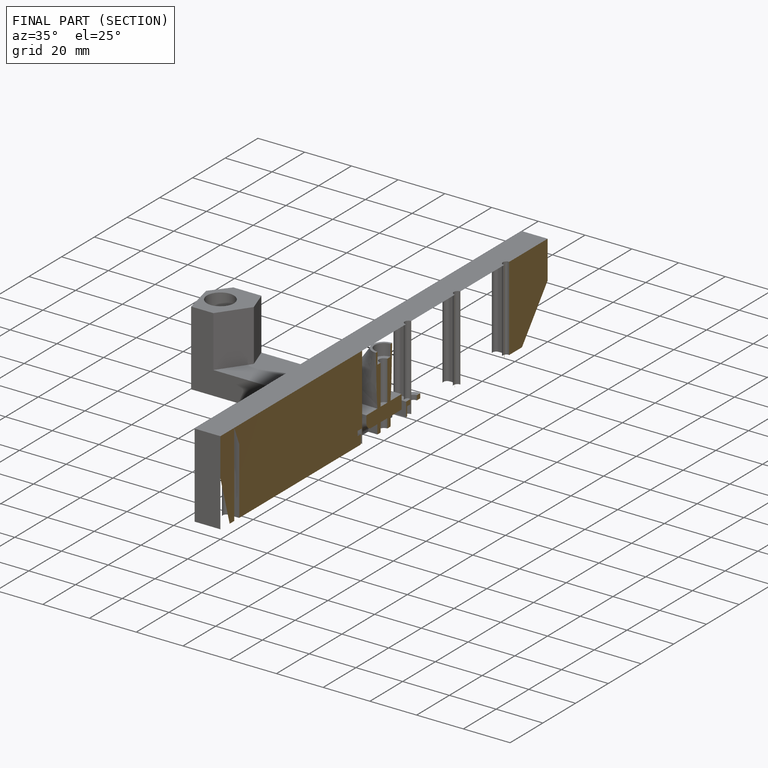
[diagram: finished part — half-section view (interior)]
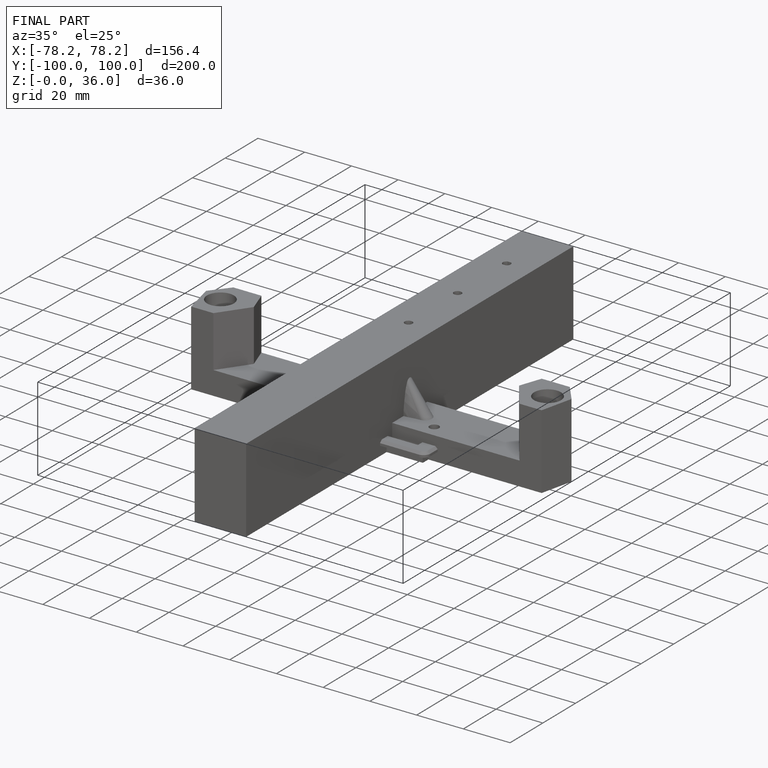
[diagram: finished part — iso view with bounding-box wireframe]
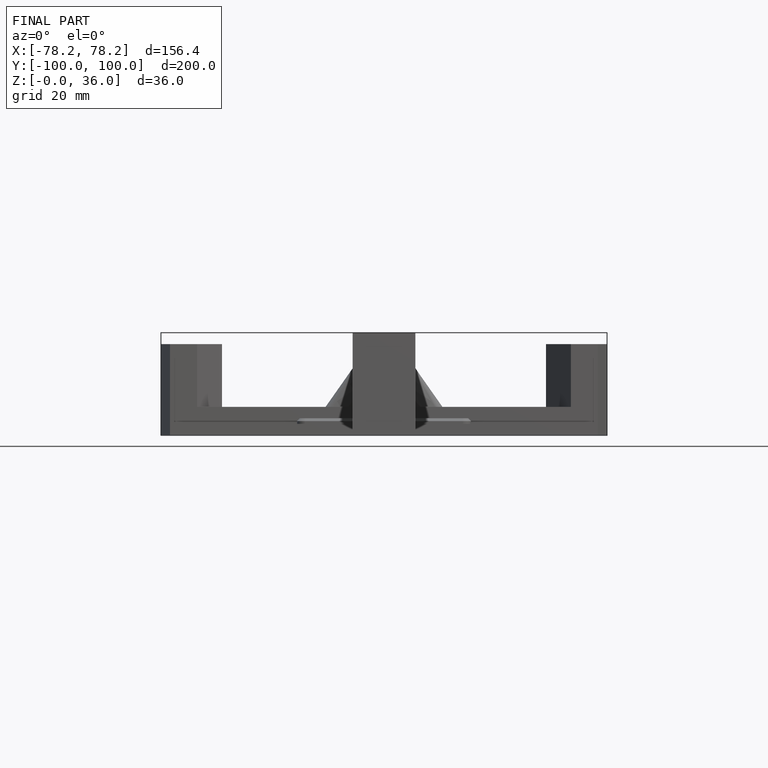
[diagram: finished part — front view with bounding-box wireframe]
